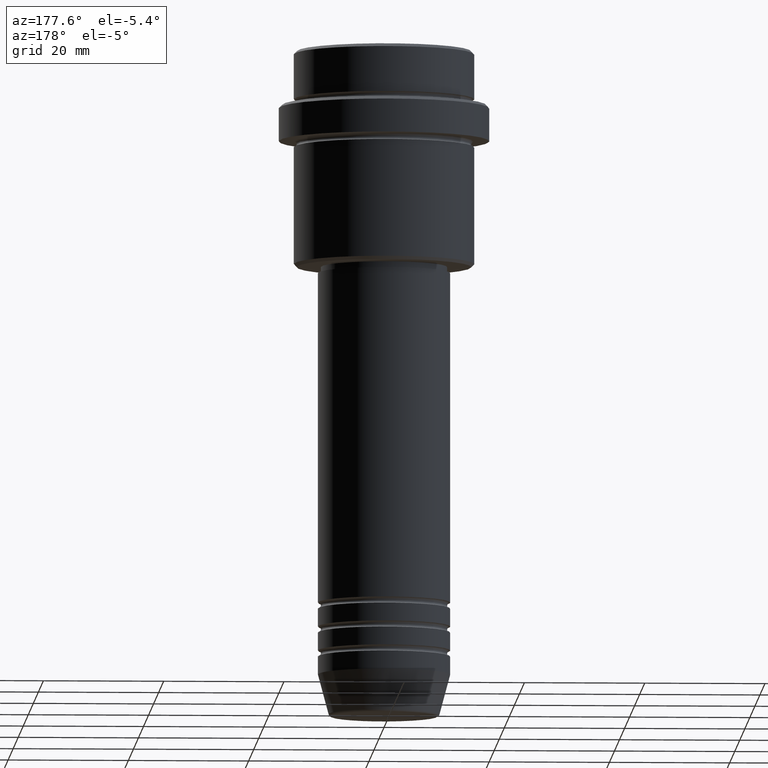
[diagram: clean part render]
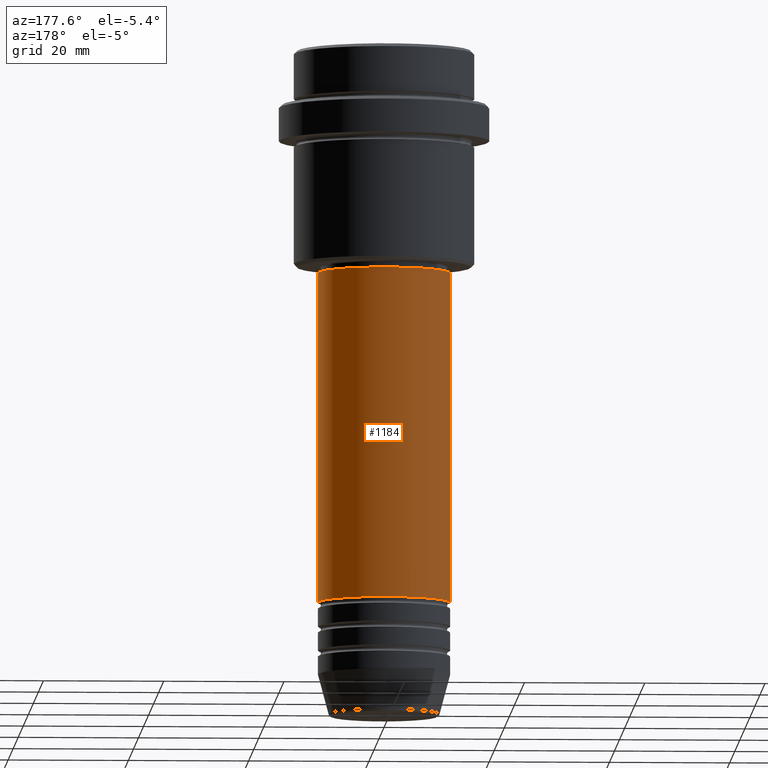
[diagram: same view with one face highlighted and labeled with its STEP entity id]
A machine part, auxiliary view. The second image highlights one B-rep face of the part: STEP entity #1184.
In plain terms, the highlighted cylindrical surface (partial cylindrical patch) has radius 11 mm, axis along (-0, -0, 1).
Its self-contained STEP definition (entity closure, byte-faithful):
#6 = CARTESIAN_POINT ( 'NONE',  ( -10.99999999999999822, 1.347111479062088207E-15, -37.00000000000002132 ) ) ;
#23 = CARTESIAN_POINT ( 'NONE',  ( 0.000000000000000000, 0.000000000000000000, -37.00000000000002132 ) ) ;
#61 = DIRECTION ( 'NONE',  ( -0.000000000000000000, -0.000000000000000000, 1.000000000000000000 ) ) ;
#97 = CARTESIAN_POINT ( 'NONE',  ( 0.000000000000000000, 0.000000000000000000, -91.99999999999988631 ) ) ;
#145 = VERTEX_POINT ( 'NONE', #843 ) ;
#176 = VECTOR ( 'NONE', #357, 1000.000000000000000 ) ;
#183 = ORIENTED_EDGE ( 'NONE', *, *, #260, .F. ) ;
#215 = CIRCLE ( 'NONE', #1137, 10.99999999999999822 ) ;
#256 = VERTEX_POINT ( 'NONE', #6 ) ;
#257 = CARTESIAN_POINT ( 'NONE',  ( 10.99999999999999822, 0.000000000000000000, -37.00000000000002132 ) ) ;
#260 = EDGE_CURVE ( 'NONE', #514, #256, #215, .T. ) ;
#309 = AXIS2_PLACEMENT_3D ( 'NONE', #1143, #61, #599 ) ;
#321 = DIRECTION ( 'NONE',  ( -0.000000000000000000, -0.000000000000000000, 1.000000000000000000 ) ) ;
#357 = DIRECTION ( 'NONE',  ( -0.000000000000000000, -0.000000000000000000, 1.000000000000000000 ) ) ;
#469 = CARTESIAN_POINT ( 'NONE',  ( -11.00000000000000000, 1.347111479062088405E-15, 0.000000000000000000 ) ) ;
#481 = FACE_OUTER_BOUND ( 'NONE', #1296, .T. ) ;
#487 = ORIENTED_EDGE ( 'NONE', *, *, #862, .T. ) ;
#514 = VERTEX_POINT ( 'NONE', #257 ) ;
#529 = EDGE_CURVE ( 'NONE', #145, #256, #900, .T. ) ;
#560 = LINE ( 'NONE', #1413, #1373 ) ;
#599 = DIRECTION ( 'NONE',  ( 1.000000000000000000, 0.000000000000000000, 0.000000000000000000 ) ) ;
#825 = ORIENTED_EDGE ( 'NONE', *, *, #906, .F. ) ;
#843 = CARTESIAN_POINT ( 'NONE',  ( -11.00000000000000000, 1.347111479062088405E-15, -91.99999999999988631 ) ) ;
#859 = DIRECTION ( 'NONE',  ( -0.000000000000000000, -0.000000000000000000, 1.000000000000000000 ) ) ;
#862 = EDGE_CURVE ( 'NONE', #1083, #145, #965, .T. ) ;
#900 = LINE ( 'NONE', #469, #176 ) ;
#906 = EDGE_CURVE ( 'NONE', #1083, #514, #560, .T. ) ;
#907 = DIRECTION ( 'NONE',  ( 1.000000000000000000, 0.000000000000000000, 0.000000000000000000 ) ) ;
#965 = CIRCLE ( 'NONE', #1141, 11.00000000000000000 ) ;
#1046 = ORIENTED_EDGE ( 'NONE', *, *, #529, .T. ) ;
#1083 = VERTEX_POINT ( 'NONE', #1199 ) ;
#1137 = AXIS2_PLACEMENT_3D ( 'NONE', #23, #1236, #907 ) ;
#1141 = AXIS2_PLACEMENT_3D ( 'NONE', #97, #859, #1295 ) ;
#1143 = CARTESIAN_POINT ( 'NONE',  ( 0.000000000000000000, 0.000000000000000000, 0.000000000000000000 ) ) ;
#1184 = ADVANCED_FACE ( 'NONE', ( #481 ), #1241, .T. ) ;
#1199 = CARTESIAN_POINT ( 'NONE',  ( 11.00000000000000000, 0.000000000000000000, -91.99999999999988631 ) ) ;
#1236 = DIRECTION ( 'NONE',  ( -0.000000000000000000, -0.000000000000000000, 1.000000000000000000 ) ) ;
#1241 = CYLINDRICAL_SURFACE ( 'NONE', #309, 11.00000000000000000 ) ;
#1295 = DIRECTION ( 'NONE',  ( 1.000000000000000000, 0.000000000000000000, 0.000000000000000000 ) ) ;
#1296 = EDGE_LOOP ( 'NONE', ( #487, #1046, #183, #825 ) ) ;
#1373 = VECTOR ( 'NONE', #321, 1000.000000000000000 ) ;
#1413 = CARTESIAN_POINT ( 'NONE',  ( 11.00000000000000000, 0.000000000000000000, 0.000000000000000000 ) ) ;